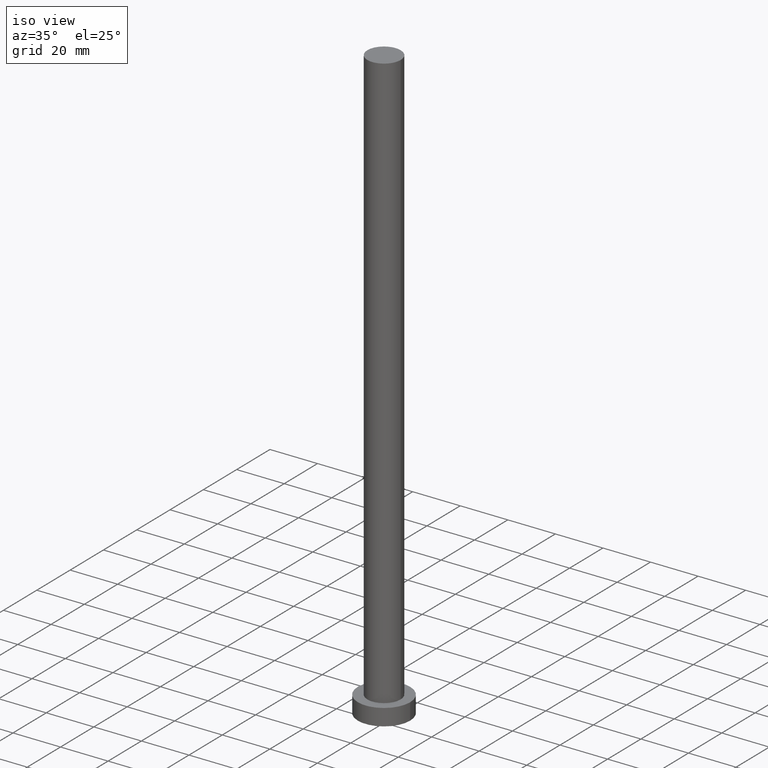
[diagram: clean part render]
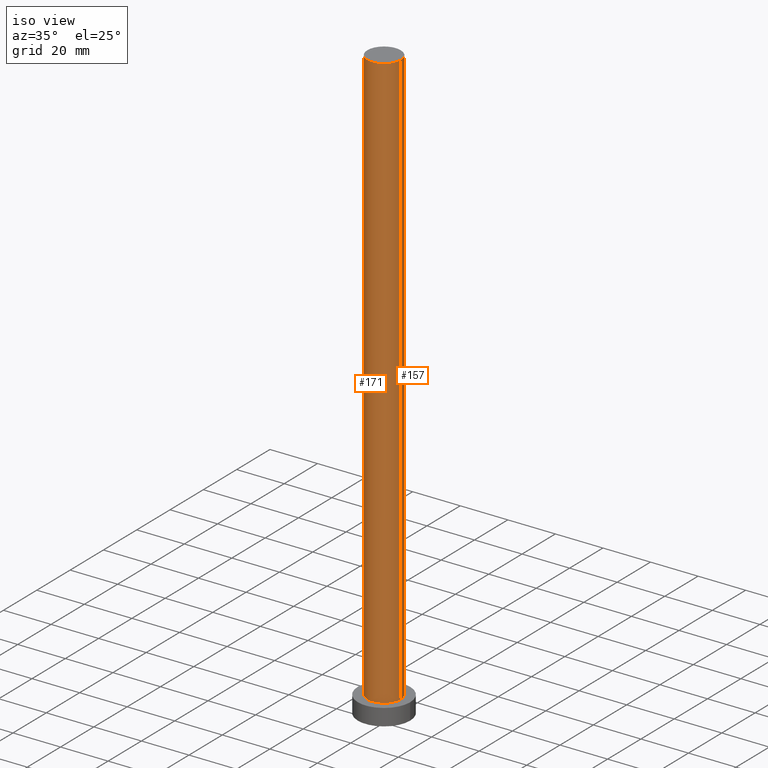
[diagram: same view with one multi-face feature highlighted, each face labeled with its STEP entity id]
A machine part, iso view. The highlighted faces form ONE feature: a constant-radius fillet chain: 2 tangent blend faces with common blend radius 7 mm. The faces share edges in the B-rep.
Their STEP definitions:
[1] entity #171 (Cylinder):
#1 = VECTOR ( 'NONE', #66, 1000.000000000000000 ) ;
#3 = CARTESIAN_POINT ( 'NONE',  ( 7.000000000000000888, 8.572527594031474176E-16, 7.000000000000000000 ) ) ;
#16 = DIRECTION ( 'NONE',  ( -1.000000000000000000, 0.000000000000000000, 0.000000000000000000 ) ) ;
#18 = CARTESIAN_POINT ( 'NONE',  ( 7.000000000000000888, 8.572527594031474176E-16, 250.0000000000000000 ) ) ;
#32 = DIRECTION ( 'NONE',  ( -0.000000000000000000, -0.000000000000000000, -1.000000000000000000 ) ) ;
#36 = LINE ( 'NONE', #186, #226 ) ;
#39 = DIRECTION ( 'NONE',  ( 0.000000000000000000, 0.000000000000000000, 1.000000000000000000 ) ) ;
#45 = ORIENTED_EDGE ( 'NONE', *, *, #165, .T. ) ;
#48 = FACE_OUTER_BOUND ( 'NONE', #156, .T. ) ;
#56 = EDGE_CURVE ( 'NONE', #60, #217, #255, .T. ) ;
#60 = VERTEX_POINT ( 'NONE', #249 ) ;
#62 = DIRECTION ( 'NONE',  ( 0.000000000000000000, 0.000000000000000000, 1.000000000000000000 ) ) ;
#66 = DIRECTION ( 'NONE',  ( -0.000000000000000000, -0.000000000000000000, -1.000000000000000000 ) ) ;
#74 = VERTEX_POINT ( 'NONE', #252 ) ;
#105 = CIRCLE ( 'NONE', #140, 7.000000000000000888 ) ;
#106 = DIRECTION ( 'NONE',  ( -0.000000000000000000, -0.000000000000000000, -1.000000000000000000 ) ) ;
#107 = CARTESIAN_POINT ( 'NONE',  ( 0.000000000000000000, 0.000000000000000000, 250.0000000000000000 ) ) ;
#120 = EDGE_CURVE ( 'NONE', #74, #60, #105, .T. ) ;
#123 = DIRECTION ( 'NONE',  ( 1.000000000000000000, 0.000000000000000000, 0.000000000000000000 ) ) ;
#131 = AXIS2_PLACEMENT_3D ( 'NONE', #234, #39, #172 ) ;
#135 = CIRCLE ( 'NONE', #131, 7.000000000000000888 ) ;
#137 = ORIENTED_EDGE ( 'NONE', *, *, #120, .F. ) ;
#140 = AXIS2_PLACEMENT_3D ( 'NONE', #107, #62, #123 ) ;
#156 = EDGE_LOOP ( 'NONE', ( #199, #137, #45, #220 ) ) ;
#162 = VERTEX_POINT ( 'NONE', #231 ) ;
#164 = CYLINDRICAL_SURFACE ( 'NONE', #196, 7.000000000000000888 ) ;
#165 = EDGE_CURVE ( 'NONE', #74, #162, #36, .T. ) ;
#171 = ADVANCED_FACE ( 'NONE', ( #48 ), #164, .T. ) ;
#172 = DIRECTION ( 'NONE',  ( 1.000000000000000000, 0.000000000000000000, 0.000000000000000000 ) ) ;
#186 = CARTESIAN_POINT ( 'NONE',  ( -7.000000000000000888, 0.000000000000000000, 250.0000000000000000 ) ) ;
#196 = AXIS2_PLACEMENT_3D ( 'NONE', #250, #32, #16 ) ;
#199 = ORIENTED_EDGE ( 'NONE', *, *, #56, .F. ) ;
#208 = EDGE_CURVE ( 'NONE', #162, #217, #135, .T. ) ;
#217 = VERTEX_POINT ( 'NONE', #3 ) ;
#220 = ORIENTED_EDGE ( 'NONE', *, *, #208, .T. ) ;
#226 = VECTOR ( 'NONE', #106, 1000.000000000000000 ) ;
#231 = CARTESIAN_POINT ( 'NONE',  ( -7.000000000000000888, 0.000000000000000000, 7.000000000000000000 ) ) ;
#234 = CARTESIAN_POINT ( 'NONE',  ( 0.000000000000000000, 0.000000000000000000, 7.000000000000000000 ) ) ;
#249 = CARTESIAN_POINT ( 'NONE',  ( 7.000000000000000888, 8.572527594031474176E-16, 250.0000000000000000 ) ) ;
#250 = CARTESIAN_POINT ( 'NONE',  ( 0.000000000000000000, 0.000000000000000000, 250.0000000000000000 ) ) ;
#252 = CARTESIAN_POINT ( 'NONE',  ( -7.000000000000000888, 0.000000000000000000, 250.0000000000000000 ) ) ;
#255 = LINE ( 'NONE', #18, #1 ) ;
[2] entity #157 (Cylinder):
#1 = VECTOR ( 'NONE', #66, 1000.000000000000000 ) ;
#3 = CARTESIAN_POINT ( 'NONE',  ( 7.000000000000000888, 8.572527594031474176E-16, 7.000000000000000000 ) ) ;
#18 = CARTESIAN_POINT ( 'NONE',  ( 7.000000000000000888, 8.572527594031474176E-16, 250.0000000000000000 ) ) ;
#25 = DIRECTION ( 'NONE',  ( 0.000000000000000000, 0.000000000000000000, 1.000000000000000000 ) ) ;
#27 = ORIENTED_EDGE ( 'NONE', *, *, #94, .F. ) ;
#35 = AXIS2_PLACEMENT_3D ( 'NONE', #174, #25, #193 ) ;
#36 = LINE ( 'NONE', #186, #226 ) ;
#42 = ORIENTED_EDGE ( 'NONE', *, *, #56, .T. ) ;
#44 = EDGE_LOOP ( 'NONE', ( #27, #42, #155, #132 ) ) ;
#55 = CIRCLE ( 'NONE', #83, 7.000000000000000888 ) ;
#56 = EDGE_CURVE ( 'NONE', #60, #217, #255, .T. ) ;
#60 = VERTEX_POINT ( 'NONE', #249 ) ;
#63 = CARTESIAN_POINT ( 'NONE',  ( 0.000000000000000000, 0.000000000000000000, 250.0000000000000000 ) ) ;
#66 = DIRECTION ( 'NONE',  ( -0.000000000000000000, -0.000000000000000000, -1.000000000000000000 ) ) ;
#71 = AXIS2_PLACEMENT_3D ( 'NONE', #102, #121, #81 ) ;
#74 = VERTEX_POINT ( 'NONE', #252 ) ;
#81 = DIRECTION ( 'NONE',  ( -1.000000000000000000, 0.000000000000000000, 0.000000000000000000 ) ) ;
#83 = AXIS2_PLACEMENT_3D ( 'NONE', #63, #232, #233 ) ;
#94 = EDGE_CURVE ( 'NONE', #60, #74, #55, .T. ) ;
#102 = CARTESIAN_POINT ( 'NONE',  ( 0.000000000000000000, 0.000000000000000000, 250.0000000000000000 ) ) ;
#106 = DIRECTION ( 'NONE',  ( -0.000000000000000000, -0.000000000000000000, -1.000000000000000000 ) ) ;
#121 = DIRECTION ( 'NONE',  ( -0.000000000000000000, -0.000000000000000000, -1.000000000000000000 ) ) ;
#132 = ORIENTED_EDGE ( 'NONE', *, *, #165, .F. ) ;
#155 = ORIENTED_EDGE ( 'NONE', *, *, #214, .T. ) ;
#157 = ADVANCED_FACE ( 'NONE', ( #204 ), #168, .T. ) ;
#162 = VERTEX_POINT ( 'NONE', #231 ) ;
#165 = EDGE_CURVE ( 'NONE', #74, #162, #36, .T. ) ;
#168 = CYLINDRICAL_SURFACE ( 'NONE', #71, 7.000000000000000888 ) ;
#174 = CARTESIAN_POINT ( 'NONE',  ( 0.000000000000000000, 0.000000000000000000, 7.000000000000000000 ) ) ;
#186 = CARTESIAN_POINT ( 'NONE',  ( -7.000000000000000888, 0.000000000000000000, 250.0000000000000000 ) ) ;
#193 = DIRECTION ( 'NONE',  ( 1.000000000000000000, 0.000000000000000000, 0.000000000000000000 ) ) ;
#204 = FACE_OUTER_BOUND ( 'NONE', #44, .T. ) ;
#214 = EDGE_CURVE ( 'NONE', #217, #162, #228, .T. ) ;
#217 = VERTEX_POINT ( 'NONE', #3 ) ;
#226 = VECTOR ( 'NONE', #106, 1000.000000000000000 ) ;
#228 = CIRCLE ( 'NONE', #35, 7.000000000000000888 ) ;
#231 = CARTESIAN_POINT ( 'NONE',  ( -7.000000000000000888, 0.000000000000000000, 7.000000000000000000 ) ) ;
#232 = DIRECTION ( 'NONE',  ( 0.000000000000000000, 0.000000000000000000, 1.000000000000000000 ) ) ;
#233 = DIRECTION ( 'NONE',  ( 1.000000000000000000, 0.000000000000000000, 0.000000000000000000 ) ) ;
#249 = CARTESIAN_POINT ( 'NONE',  ( 7.000000000000000888, 8.572527594031474176E-16, 250.0000000000000000 ) ) ;
#252 = CARTESIAN_POINT ( 'NONE',  ( -7.000000000000000888, 0.000000000000000000, 250.0000000000000000 ) ) ;
#255 = LINE ( 'NONE', #18, #1 ) ;